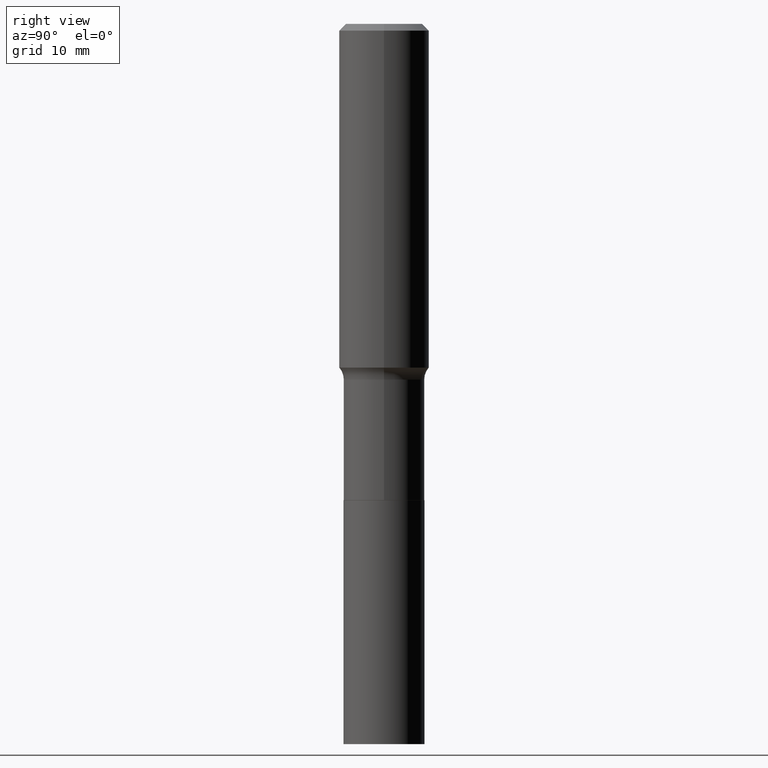
[diagram: clean part render]
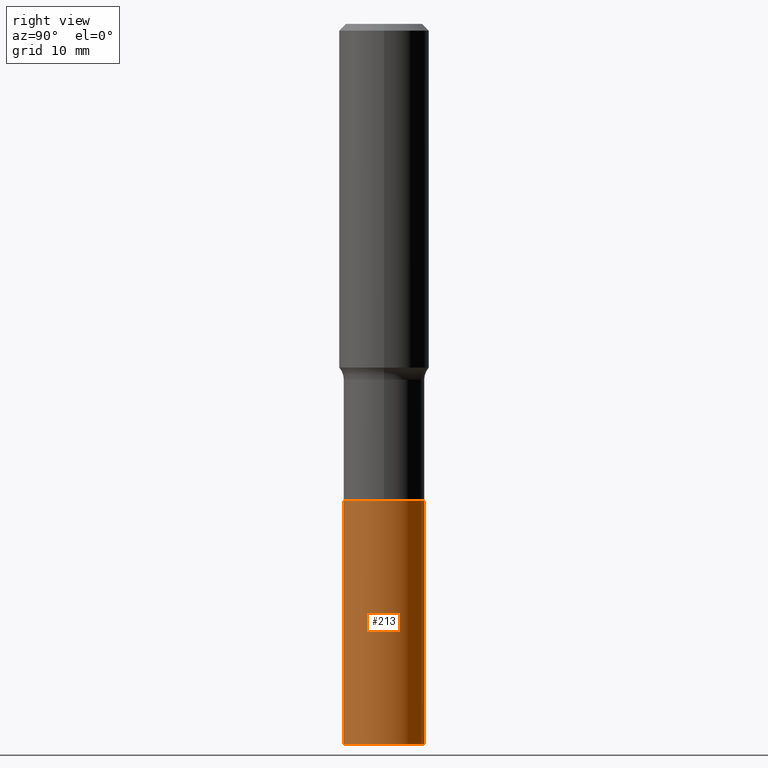
[diagram: same view with one face highlighted and labeled with its STEP entity id]
A machine part, right view. The second image highlights one B-rep face of the part: STEP entity #213.
In plain terms, the highlighted cylindrical surface (partial cylindrical patch) has radius 4.4996 mm, axis along (-0, 0, 1).
Its self-contained STEP definition (entity closure, byte-faithful):
#2 = DIRECTION ( 'NONE',  ( -2.445982101368739272E-29, 3.490746270925279070E-15, 1.000000000000000000 ) ) ;
#19 = AXIS2_PLACEMENT_3D ( 'NONE', #81, #261, #115 ) ;
#23 = VERTEX_POINT ( 'NONE', #125 ) ;
#25 = ORIENTED_EDGE ( 'NONE', *, *, #462, .F. ) ;
#74 = EDGE_CURVE ( 'NONE', #23, #234, #373, .T. ) ;
#76 = VECTOR ( 'NONE', #184, 39.37007874015748143 ) ;
#80 = ORIENTED_EDGE ( 'NONE', *, *, #74, .T. ) ;
#81 = CARTESIAN_POINT ( 'NONE',  ( 5.092933335761166106E-29, -7.271359036274735388E-15, -2.082600000000000229 ) ) ;
#115 = DIRECTION ( 'NONE',  ( -6.982962677686265922E-15, -1.000000000000000000, 3.084220145260246224E-15 ) ) ;
#125 = CARTESIAN_POINT ( 'NONE',  ( -1.237031838352045086E-15, -0.1771500000000110209, -3.149600000000000399 ) ) ;
#137 = EDGE_LOOP ( 'NONE', ( #80, #324, #25, #236 ) ) ;
#171 = EDGE_CURVE ( 'NONE', #234, #459, #389, .T. ) ;
#183 = VERTEX_POINT ( 'NONE', #432 ) ;
#184 = DIRECTION ( 'NONE',  ( -2.445982101368739272E-29, 3.490746270925279070E-15, 1.000000000000000000 ) ) ;
#186 = CARTESIAN_POINT ( 'NONE',  ( 1.258726456399068374E-15, 0.1771499999999927299, -2.082600000000000673 ) ) ;
#202 = VECTOR ( 'NONE', #2, 39.37007874015748143 ) ;
#206 = FACE_OUTER_BOUND ( 'NONE', #137, .T. ) ;
#213 = ADVANCED_FACE ( 'NONE', ( #206 ), #440, .T. ) ;
#223 = CARTESIAN_POINT ( 'NONE',  ( 7.702796237921611496E-29, -1.099598530735201076E-14, -3.149600000000000843 ) ) ;
#229 = CARTESIAN_POINT ( 'NONE',  ( 1.258726456399081391E-15, 0.1771499999999890107, -3.149600000000001288 ) ) ;
#234 = VERTEX_POINT ( 'NONE', #229 ) ;
#236 = ORIENTED_EDGE ( 'NONE', *, *, #301, .F. ) ;
#240 = CARTESIAN_POINT ( 'NONE',  ( 1.258726456399094407E-15, 0.1771499999999927299, -2.082600000000000673 ) ) ;
#243 = CIRCLE ( 'NONE', #370, 0.1771500000000000019 ) ;
#256 = DIRECTION ( 'NONE',  ( -2.445982101368739552E-29, 3.490746270925278675E-15, 1.000000000000000000 ) ) ;
#261 = DIRECTION ( 'NONE',  ( -2.445982101368739552E-29, 3.490746270925278675E-15, 1.000000000000000000 ) ) ;
#301 = EDGE_CURVE ( 'NONE', #23, #183, #345, .T. ) ;
#324 = ORIENTED_EDGE ( 'NONE', *, *, #171, .T. ) ;
#335 = DIRECTION ( 'NONE',  ( -6.982962677686265922E-15, -1.000000000000000000, 3.084220145260246224E-15 ) ) ;
#336 = DIRECTION ( 'NONE',  ( -6.982962677686265922E-15, -1.000000000000000000, 3.084220145260246224E-15 ) ) ;
#345 = LINE ( 'NONE', #408, #202 ) ;
#358 = DIRECTION ( 'NONE',  ( -2.445982101368739552E-29, 3.490746270925278675E-15, 1.000000000000000000 ) ) ;
#369 = CARTESIAN_POINT ( 'NONE',  ( 5.092933335761166106E-29, -7.271359036274735388E-15, -2.082600000000000229 ) ) ;
#370 = AXIS2_PLACEMENT_3D ( 'NONE', #369, #256, #336 ) ;
#373 = CIRCLE ( 'NONE', #427, 0.1771500000000000019 ) ;
#389 = LINE ( 'NONE', #186, #76 ) ;
#408 = CARTESIAN_POINT ( 'NONE',  ( -1.237031838352071118E-15, -0.1771500000000073016, -2.082599999999999785 ) ) ;
#427 = AXIS2_PLACEMENT_3D ( 'NONE', #223, #358, #335 ) ;
#432 = CARTESIAN_POINT ( 'NONE',  ( -1.237031838352071118E-15, -0.1771500000000073016, -2.082599999999999785 ) ) ;
#440 = CYLINDRICAL_SURFACE ( 'NONE', #19, 0.1771500000000000019 ) ;
#459 = VERTEX_POINT ( 'NONE', #240 ) ;
#462 = EDGE_CURVE ( 'NONE', #183, #459, #243, .T. ) ;